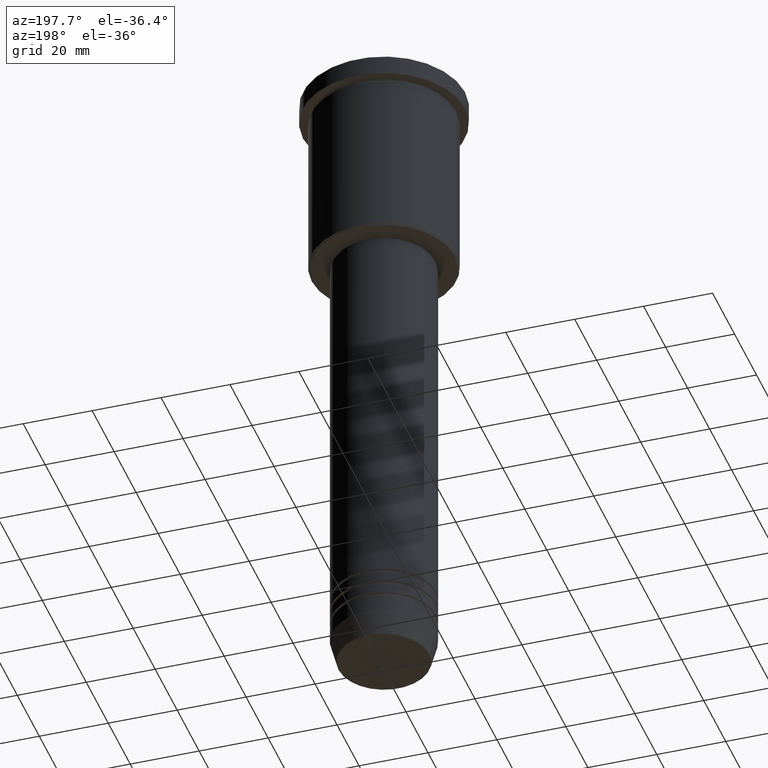
[diagram: clean part render]
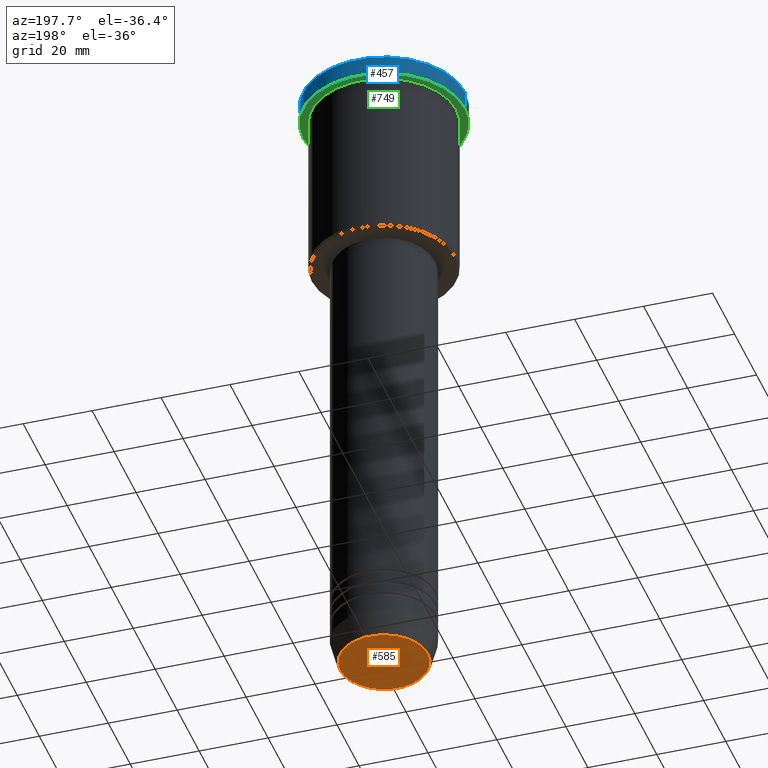
[diagram: same view with three faces highlighted in distinct colors, each labeled with its STEP entity id]
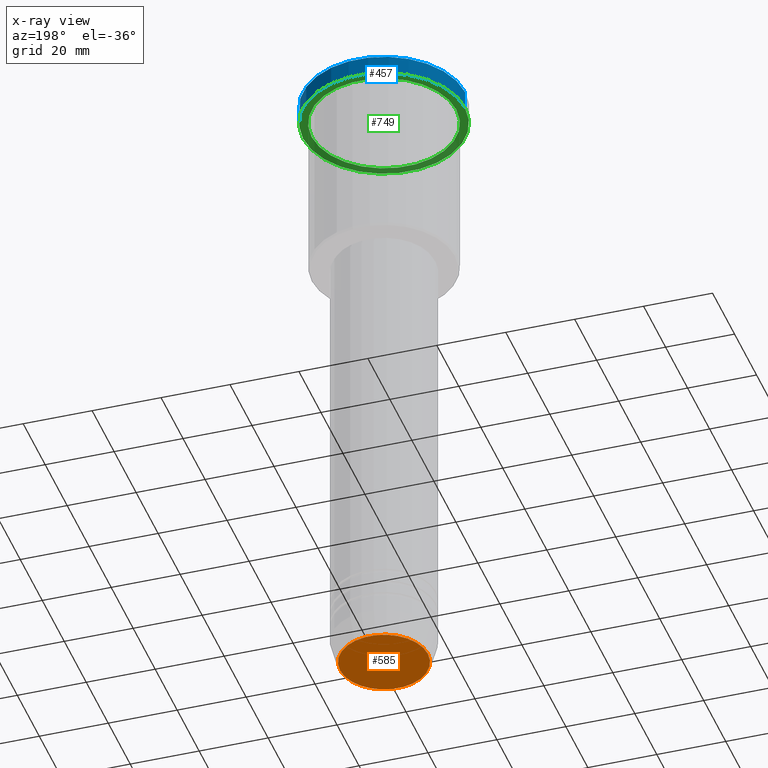
[diagram: x-ray of the same camera — body ghosted, the three highlighted faces saturated]
A machine part, auxiliary view with three faces highlighted in distinct colors.
The next image is the same camera in x-ray (body ghosted, the three faces saturated) — at least one of them is partly hidden behind the body in this view.
Their STEP definitions:

[orange] entity #585 — the highlighted planar face has unit normal (0, -0, 1).
#15 = CARTESIAN_POINT ( 'NONE',  ( 0.000000000000000000, 0.000000000000000000, -191.0000000000000000 ) ) ;
#61 = CIRCLE ( 'NONE', #657, 12.74069215899265828 ) ;
#82 = DIRECTION ( 'NONE',  ( 0.000000000000000000, -0.000000000000000000, 1.000000000000000000 ) ) ;
#190 = DIRECTION ( 'NONE',  ( 0.000000000000000000, 0.000000000000000000, -1.000000000000000000 ) ) ;
#202 = EDGE_CURVE ( 'NONE', #927, #206, #461, .T. ) ;
#206 = VERTEX_POINT ( 'NONE', #837 ) ;
#224 = ORIENTED_EDGE ( 'NONE', *, *, #997, .T. ) ;
#295 = DIRECTION ( 'NONE',  ( 0.000000000000000000, 0.000000000000000000, -1.000000000000000000 ) ) ;
#368 = DIRECTION ( 'NONE',  ( 1.000000000000000000, 0.000000000000000000, 0.000000000000000000 ) ) ;
#438 = FACE_OUTER_BOUND ( 'NONE', #509, .T. ) ;
#461 = CIRCLE ( 'NONE', #1086, 12.74069215899265828 ) ;
#478 = ORIENTED_EDGE ( 'NONE', *, *, #202, .T. ) ;
#479 = DIRECTION ( 'NONE',  ( 1.000000000000000000, 0.000000000000000000, 0.000000000000000000 ) ) ;
#509 = EDGE_LOOP ( 'NONE', ( #224, #478 ) ) ;
#552 = CARTESIAN_POINT ( 'NONE',  ( 0.000000000000000000, 0.000000000000000000, -191.0000000000000000 ) ) ;
#585 = ADVANCED_FACE ( 'NONE', ( #438 ), #705, .F. ) ;
#645 = CARTESIAN_POINT ( 'NONE',  ( -12.74069215899265828, 1.589857736427681035E-15, -191.0000000000000000 ) ) ;
#657 = AXIS2_PLACEMENT_3D ( 'NONE', #15, #295, #368 ) ;
#705 = PLANE ( 'NONE',  #1037 ) ;
#837 = CARTESIAN_POINT ( 'NONE',  ( 12.74069215899265828, 0.000000000000000000, -191.0000000000000000 ) ) ;
#927 = VERTEX_POINT ( 'NONE', #645 ) ;
#997 = EDGE_CURVE ( 'NONE', #206, #927, #61, .T. ) ;
#1010 = CARTESIAN_POINT ( 'NONE',  ( 0.000000000000000000, 0.000000000000000000, -191.0000000000000000 ) ) ;
#1037 = AXIS2_PLACEMENT_3D ( 'NONE', #552, #82, #1080 ) ;
#1080 = DIRECTION ( 'NONE',  ( 1.000000000000000000, 0.000000000000000000, 0.000000000000000000 ) ) ;
#1086 = AXIS2_PLACEMENT_3D ( 'NONE', #1010, #190, #479 ) ;

[blue] entity #457 — the highlighted cylindrical surface (partial cylindrical patch) has radius 23.5 mm, axis along (-0, -0, 1).
#47 = EDGE_CURVE ( 'NONE', #902, #57, #924, .T. ) ;
#57 = VERTEX_POINT ( 'NONE', #123 ) ;
#79 = LINE ( 'NONE', #1063, #291 ) ;
#81 = AXIS2_PLACEMENT_3D ( 'NONE', #1013, #667, #1106 ) ;
#88 = LINE ( 'NONE', #1093, #443 ) ;
#89 = EDGE_CURVE ( 'NONE', #318, #57, #88, .T. ) ;
#117 = AXIS2_PLACEMENT_3D ( 'NONE', #595, #337, #1043 ) ;
#123 = CARTESIAN_POINT ( 'NONE',  ( 23.50000000000000000, 0.000000000000000000, -0.5000000000000281997 ) ) ;
#127 = EDGE_LOOP ( 'NONE', ( #1154, #706, #802, #881 ) ) ;
#291 = VECTOR ( 'NONE', #1161, 1000.000000000000000 ) ;
#318 = VERTEX_POINT ( 'NONE', #378 ) ;
#337 = DIRECTION ( 'NONE',  ( -0.000000000000000000, -0.000000000000000000, 1.000000000000000000 ) ) ;
#367 = VERTEX_POINT ( 'NONE', #889 ) ;
#378 = CARTESIAN_POINT ( 'NONE',  ( 23.50000000000000000, 0.000000000000000000, -5.999999999999993783 ) ) ;
#443 = VECTOR ( 'NONE', #811, 1000.000000000000000 ) ;
#457 = ADVANCED_FACE ( 'NONE', ( #701 ), #1066, .T. ) ;
#581 = DIRECTION ( 'NONE',  ( 0.000000000000000000, 0.000000000000000000, -1.000000000000000000 ) ) ;
#595 = CARTESIAN_POINT ( 'NONE',  ( 0.000000000000000000, 0.000000000000000000, 0.000000000000000000 ) ) ;
#667 = DIRECTION ( 'NONE',  ( -0.000000000000000000, -0.000000000000000000, 1.000000000000000000 ) ) ;
#701 = FACE_OUTER_BOUND ( 'NONE', #127, .T. ) ;
#706 = ORIENTED_EDGE ( 'NONE', *, *, #1180, .T. ) ;
#802 = ORIENTED_EDGE ( 'NONE', *, *, #47, .T. ) ;
#811 = DIRECTION ( 'NONE',  ( -0.000000000000000000, -0.000000000000000000, 1.000000000000000000 ) ) ;
#843 = AXIS2_PLACEMENT_3D ( 'NONE', #1029, #581, #949 ) ;
#848 = CIRCLE ( 'NONE', #81, 23.50000000000000000 ) ;
#881 = ORIENTED_EDGE ( 'NONE', *, *, #89, .F. ) ;
#889 = CARTESIAN_POINT ( 'NONE',  ( -23.50000000000000000, 2.877919977996280320E-15, -5.999999999999993783 ) ) ;
#902 = VERTEX_POINT ( 'NONE', #1134 ) ;
#924 = CIRCLE ( 'NONE', #843, 23.50000000000000000 ) ;
#949 = DIRECTION ( 'NONE',  ( 1.000000000000000000, 0.000000000000000000, 0.000000000000000000 ) ) ;
#1013 = CARTESIAN_POINT ( 'NONE',  ( 0.000000000000000000, 0.000000000000000000, -5.999999999999993783 ) ) ;
#1020 = EDGE_CURVE ( 'NONE', #318, #367, #848, .T. ) ;
#1029 = CARTESIAN_POINT ( 'NONE',  ( 0.000000000000000000, 0.000000000000000000, -0.5000000000000281997 ) ) ;
#1043 = DIRECTION ( 'NONE',  ( 1.000000000000000000, 0.000000000000000000, 0.000000000000000000 ) ) ;
#1063 = CARTESIAN_POINT ( 'NONE',  ( -23.50000000000000000, 2.877919977996280320E-15, 0.000000000000000000 ) ) ;
#1066 = CYLINDRICAL_SURFACE ( 'NONE', #117, 23.50000000000000000 ) ;
#1093 = CARTESIAN_POINT ( 'NONE',  ( 23.50000000000000000, 0.000000000000000000, 0.000000000000000000 ) ) ;
#1106 = DIRECTION ( 'NONE',  ( 1.000000000000000000, 0.000000000000000000, 0.000000000000000000 ) ) ;
#1134 = CARTESIAN_POINT ( 'NONE',  ( -23.50000000000000000, 2.877919977996280320E-15, -0.5000000000000281997 ) ) ;
#1154 = ORIENTED_EDGE ( 'NONE', *, *, #1020, .T. ) ;
#1161 = DIRECTION ( 'NONE',  ( -0.000000000000000000, -0.000000000000000000, 1.000000000000000000 ) ) ;
#1180 = EDGE_CURVE ( 'NONE', #367, #902, #79, .T. ) ;

[green] entity #749 — the highlighted planar face has unit normal (0, 0, -1).
#3 = CIRCLE ( 'NONE', #865, 21.00000000000000000 ) ;
#20 = DIRECTION ( 'NONE',  ( -1.000000000000000000, 0.000000000000000000, -0.000000000000000000 ) ) ;
#49 = EDGE_LOOP ( 'NONE', ( #1021, #892 ) ) ;
#81 = AXIS2_PLACEMENT_3D ( 'NONE', #1013, #667, #1106 ) ;
#125 = CARTESIAN_POINT ( 'NONE',  ( 0.000000000000000000, 23.50000000000000000, -5.999999999999993783 ) ) ;
#135 = CIRCLE ( 'NONE', #636, 21.00000000000000000 ) ;
#140 = CARTESIAN_POINT ( 'NONE',  ( 21.00000000000000000, 2.571758278209441661E-15, -5.999999999999992895 ) ) ;
#194 = CARTESIAN_POINT ( 'NONE',  ( -21.00000000000000000, 0.000000000000000000, -5.999999999999992895 ) ) ;
#214 = FACE_BOUND ( 'NONE', #402, .T. ) ;
#223 = CARTESIAN_POINT ( 'NONE',  ( 0.000000000000000000, 0.000000000000000000, -5.999999999999993783 ) ) ;
#292 = PLANE ( 'NONE',  #387 ) ;
#300 = DIRECTION ( 'NONE',  ( -0.000000000000000000, -0.000000000000000000, 1.000000000000000000 ) ) ;
#314 = DIRECTION ( 'NONE',  ( -1.000000000000000000, 0.000000000000000000, 0.000000000000000000 ) ) ;
#318 = VERTEX_POINT ( 'NONE', #378 ) ;
#367 = VERTEX_POINT ( 'NONE', #889 ) ;
#378 = CARTESIAN_POINT ( 'NONE',  ( 23.50000000000000000, 0.000000000000000000, -5.999999999999993783 ) ) ;
#386 = CARTESIAN_POINT ( 'NONE',  ( 0.000000000000000000, 0.000000000000000000, -5.999999999999993783 ) ) ;
#387 = AXIS2_PLACEMENT_3D ( 'NONE', #125, #938, #20 ) ;
#402 = EDGE_LOOP ( 'NONE', ( #978, #994 ) ) ;
#424 = DIRECTION ( 'NONE',  ( -0.000000000000000000, -0.000000000000000000, 1.000000000000000000 ) ) ;
#436 = EDGE_CURVE ( 'NONE', #957, #800, #135, .T. ) ;
#476 = EDGE_CURVE ( 'NONE', #800, #957, #3, .T. ) ;
#584 = FACE_OUTER_BOUND ( 'NONE', #49, .T. ) ;
#636 = AXIS2_PLACEMENT_3D ( 'NONE', #688, #424, #794 ) ;
#667 = DIRECTION ( 'NONE',  ( -0.000000000000000000, -0.000000000000000000, 1.000000000000000000 ) ) ;
#688 = CARTESIAN_POINT ( 'NONE',  ( 0.000000000000000000, 0.000000000000000000, -5.999999999999993783 ) ) ;
#749 = ADVANCED_FACE ( 'NONE', ( #214, #584 ), #292, .T. ) ;
#794 = DIRECTION ( 'NONE',  ( -1.000000000000000000, 0.000000000000000000, 0.000000000000000000 ) ) ;
#800 = VERTEX_POINT ( 'NONE', #140 ) ;
#848 = CIRCLE ( 'NONE', #81, 23.50000000000000000 ) ;
#865 = AXIS2_PLACEMENT_3D ( 'NONE', #223, #880, #314 ) ;
#868 = AXIS2_PLACEMENT_3D ( 'NONE', #386, #300, #1094 ) ;
#880 = DIRECTION ( 'NONE',  ( -0.000000000000000000, -0.000000000000000000, 1.000000000000000000 ) ) ;
#889 = CARTESIAN_POINT ( 'NONE',  ( -23.50000000000000000, 2.877919977996280320E-15, -5.999999999999993783 ) ) ;
#892 = ORIENTED_EDGE ( 'NONE', *, *, #953, .F. ) ;
#908 = CIRCLE ( 'NONE', #868, 23.50000000000000000 ) ;
#938 = DIRECTION ( 'NONE',  ( 0.000000000000000000, 0.000000000000000000, -1.000000000000000000 ) ) ;
#953 = EDGE_CURVE ( 'NONE', #367, #318, #908, .T. ) ;
#957 = VERTEX_POINT ( 'NONE', #194 ) ;
#978 = ORIENTED_EDGE ( 'NONE', *, *, #436, .T. ) ;
#994 = ORIENTED_EDGE ( 'NONE', *, *, #476, .T. ) ;
#1013 = CARTESIAN_POINT ( 'NONE',  ( 0.000000000000000000, 0.000000000000000000, -5.999999999999993783 ) ) ;
#1020 = EDGE_CURVE ( 'NONE', #318, #367, #848, .T. ) ;
#1021 = ORIENTED_EDGE ( 'NONE', *, *, #1020, .F. ) ;
#1094 = DIRECTION ( 'NONE',  ( 1.000000000000000000, 0.000000000000000000, 0.000000000000000000 ) ) ;
#1106 = DIRECTION ( 'NONE',  ( 1.000000000000000000, 0.000000000000000000, 0.000000000000000000 ) ) ;